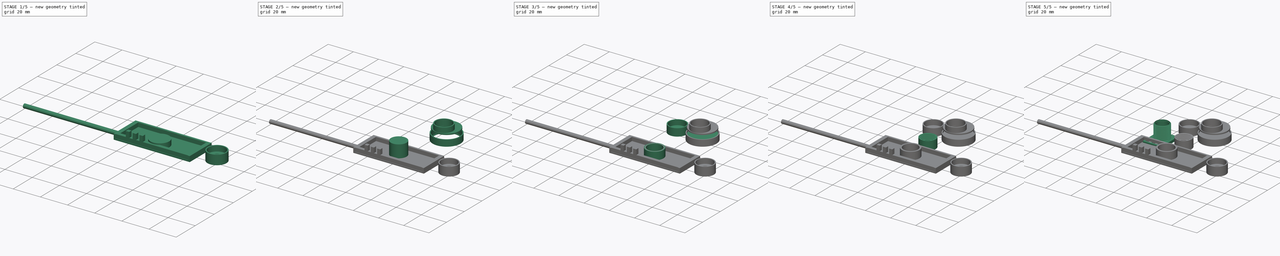
[diagram: build sequence overview — one tinted view per stage of 5, left to right]
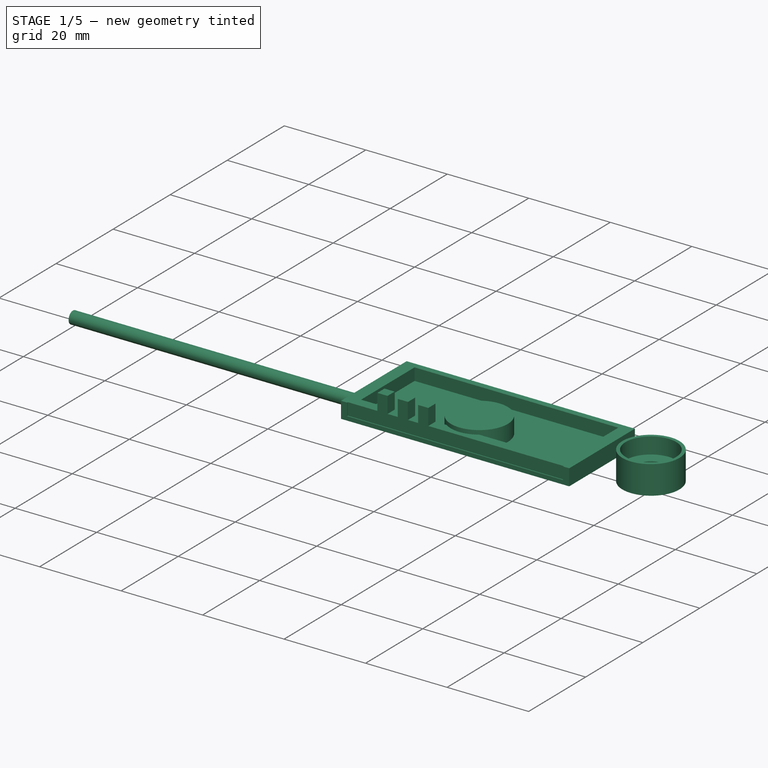
[diagram: stage 1 of 5 — iso view after this stage's code; geometry added in this stage tinted green]
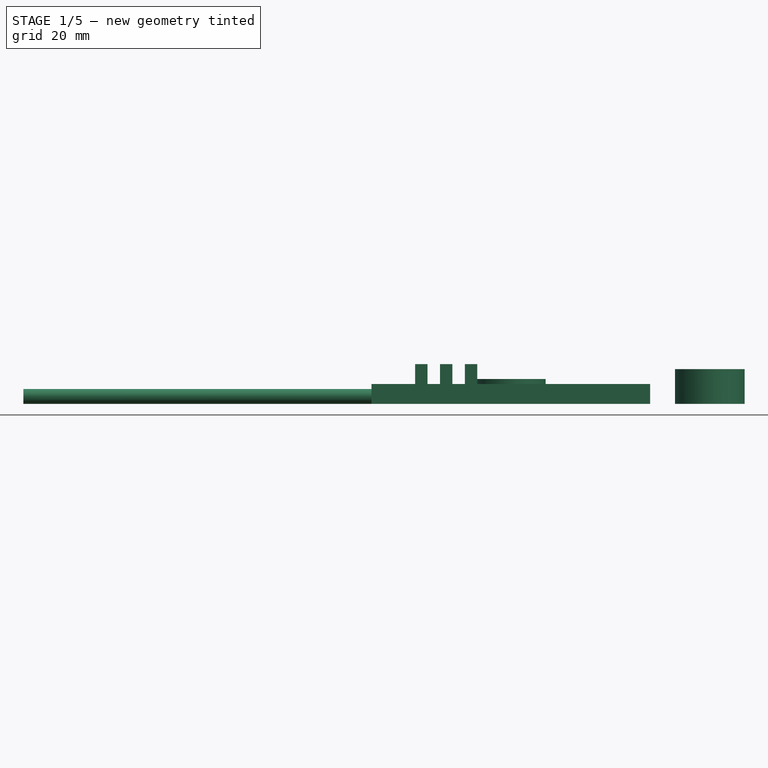
[diagram: stage 1 of 5 — front view after this stage's code; geometry added in this stage tinted green]
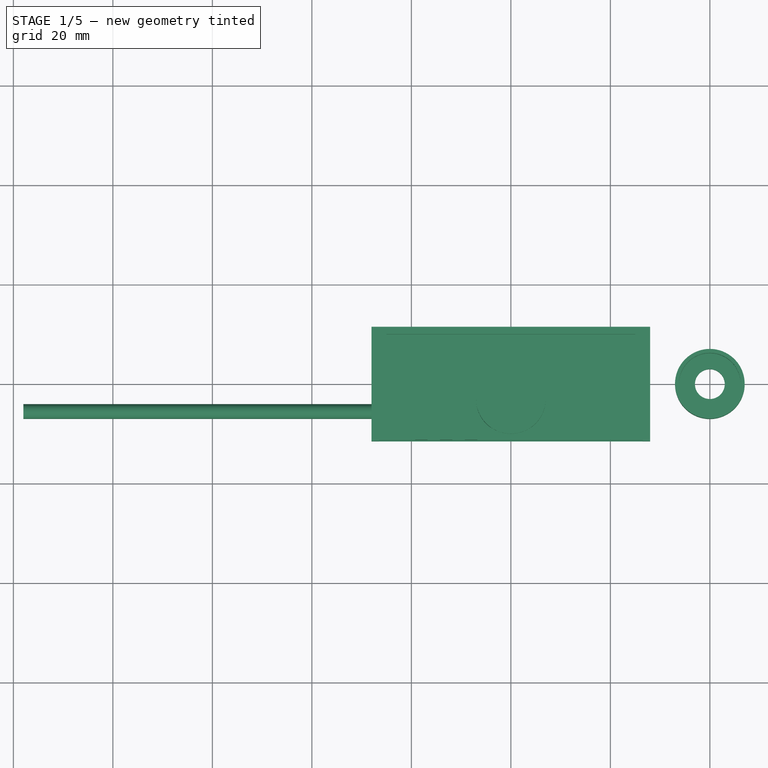
[diagram: stage 1 of 5 — top view after this stage's code; geometry added in this stage tinted green]
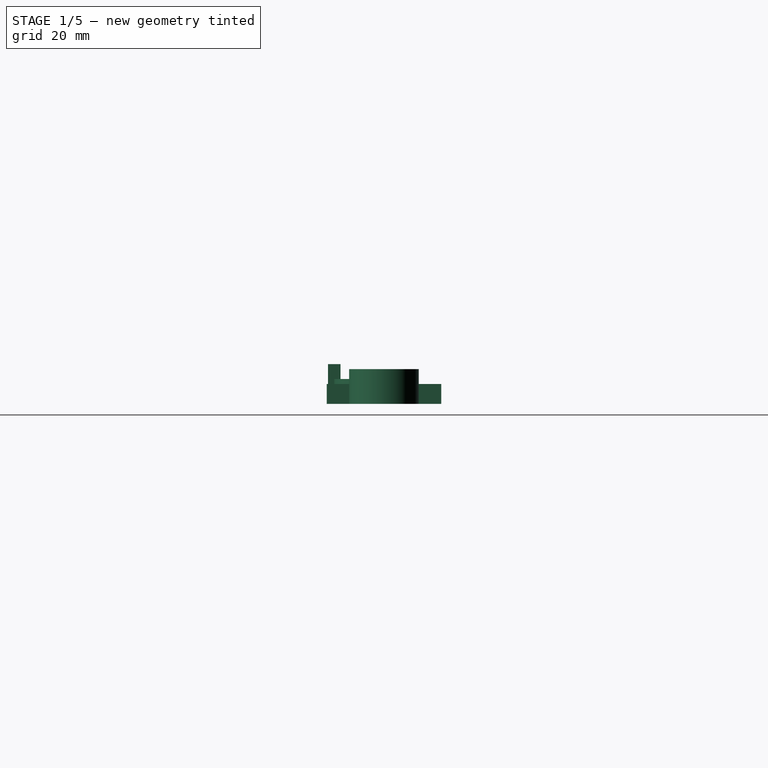
[diagram: stage 1 of 5 — right view after this stage's code; geometry added in this stage tinted green]
FCSTD DOCUMENT  (FreeCAD 0.20R29177 (Git))
Label: receiver-pd-lens03
License: All rights reserved
LicenseURL: http://en.wikipedia.org/wiki/All_rights_reserved
objects: Part::Cylinder×19, Sketcher::SketchObject×17, Part::Cut×12, PartDesign::Pad×10, PartDesign::Pocket×7, PartDesign::Body×5, Part::FeaturePython×3, Part::Fuse×2
note: 92 computed .brp shape members not serialized (recipe doc carries the construction recipe); baked Part::Feature solids carry a one-line shape summary decoded from their .brp

FEATURE [Part::Cylinder] Cylinder016  label="RedTmp06"
  Angle = 360
  AttacherType = Attacher::AttachEngine3D
  FirstAngle = 0
  Height = 5
  Placement = pos=(0,-3,0) rot=(0,0,1;0rad)
  Radius = 7
  SecondAngle = 0
FEATURE [Sketcher::SketchObject] Sketch010  label="MainRxBody003"
  FullyConstrained = true
  MapMode = 5
  Support = -> [XY_Plane003]
  sketch-geometry (4):
    g0: LineSegment StartX=-26.5 StartY=11.25 StartZ=0 EndX=26.5 EndY=11.25 EndZ=0
    g1: LineSegment StartX=26.5 StartY=11.25 StartZ=0 EndX=26.5 EndY=-11.25 EndZ=0
    g2: LineSegment StartX=26.5 StartY=-11.25 StartZ=0 EndX=-26.5 EndY=-11.25 EndZ=0
    g3: LineSegment StartX=-26.5 StartY=-11.25 StartZ=0 EndX=-26.5 EndY=11.25 EndZ=0
  constraints (11):
    c: Coincident(g0,g1)
    c: Coincident(g1,g2)
    c: Coincident(g2,g3)
    c: Coincident(g3,g0)
    c: Horizontal(g0)
    c: Horizontal(g2)
    c: Vertical(g1)
    c: Vertical(g3)
    c: Symmetric(g0,g1,g-1)
    c: DistanceX(g0,g0) = 53
    c: DistanceY(g3,g3) = 22.5
FEATURE [PartDesign::Pad] Pad006  label="MainRxBody002"
  Direction = (0,0,1)
  Length = 4
  Length2 = 10
  Profile = -> Sketch010
  ReferenceAxis = -> Sketch010 [N_Axis]
  Type = 0
FEATURE [Sketcher::SketchObject] Sketch011  label="MainRxCktHole003"
  FullyConstrained = true
  MapMode = 5
  Placement = pos=(0,0,4) rot=(0,0,1;0rad)
  Support = -> [Pad006]
  expr: Constraints[10] = 50mm / 2
  sketch-geometry (4):
    g0: LineSegment StartX=-25 StartY=11.25 StartZ=0 EndX=25 EndY=11.25 EndZ=0
    g1: LineSegment StartX=25 StartY=11.25 StartZ=0 EndX=25 EndY=-8.75 EndZ=0
    g2: LineSegment StartX=25 StartY=-8.75 StartZ=0 EndX=-25 EndY=-8.75 EndZ=0
    g3: LineSegment StartX=-25 StartY=-8.75 StartZ=0 EndX=-25 EndY=11.25 EndZ=0
  constraints (12):
    c: Coincident(g0,g1)
    c: Coincident(g1,g2)
    c: Coincident(g2,g3)
    c: Coincident(g3,g0)
    c: Horizontal(g0)
    c: Horizontal(g2)
    c: Vertical(g1)
    c: Vertical(g3)
    c: DistanceX(g2,g2) = 50
    c: DistanceY(g3,g3) = 20
    c: DistanceX(g0,g-1) = 25
    c: DistanceY(g1,g-1) = 8.75
FEATURE [PartDesign::Pocket] Pocket004  label="MainRxCktHole002"
  BaseFeature = -> Pad006
  Direction = (0,0,-1)
  Length = 3.5
  Length2 = 5
  Profile = -> Sketch011
  ReferenceAxis = -> Sketch011 [N_Axis]
  Type = 0
FEATURE [Sketcher::SketchObject] Sketch012  label="Poles003"
  ExternalGeometry = -> [Pocket004]
  FullyConstrained = true
  MapMode = 5
  Placement = pos=(0,0,4) rot=(0,0,1;0rad)
  Support = -> [Pocket004]
  expr: Constraints[33] = 12mm - 2.5mm / 2
  sketch-geometry (12):
    g0: LineSegment StartX=-19.25 StartY=-8.75 StartZ=0 EndX=-16.75 EndY=-8.75 EndZ=0
    g1: LineSegment StartX=-16.75 StartY=-8.75 StartZ=0 EndX=-16.75 EndY=-11.25 EndZ=0
    g2: LineSegment StartX=-16.75 StartY=-11.25 StartZ=0 EndX=-19.25 EndY=-11.25 EndZ=0
    g3: LineSegment StartX=-19.25 StartY=-11.25 StartZ=0 EndX=-19.25 EndY=-8.75 EndZ=0
    g4: LineSegment StartX=-14.25 StartY=-8.75 StartZ=0 EndX=-11.75 EndY=-8.75 EndZ=0
    g5: LineSegment StartX=-11.75 StartY=-8.75 StartZ=0 EndX=-11.75 EndY=-11.25 EndZ=0
    g6: LineSegment StartX=-11.75 StartY=-11.25 StartZ=0 EndX=-14.25 EndY=-11.25 EndZ=0
    g7: LineSegment StartX=-14.25 StartY=-11.25 StartZ=0 EndX=-14.25 EndY=-8.75 EndZ=0
    g8: LineSegment StartX=-9.25 StartY=-8.75 StartZ=0 EndX=-6.75 EndY=-8.75 EndZ=0
    g9: LineSegment StartX=-6.75 StartY=-8.75 StartZ=0 EndX=-6.75 EndY=-11.25 EndZ=0
    g10: LineSegment StartX=-6.75 StartY=-11.25 StartZ=0 EndX=-9.25 EndY=-11.25 EndZ=0
    g11: LineSegment StartX=-9.25 StartY=-11.25 StartZ=0 EndX=-9.25 EndY=-8.75 EndZ=0
  constraints (36):
    c: Coincident(g0,g1)
    c: Coincident(g1,g2)
    c: Coincident(g2,g3)
    c: Coincident(g3,g0)
    c: Horizontal(g0)
    c: Horizontal(g2)
    c: Vertical(g1)
    c: Vertical(g3)
    c: PointOnObject(g0,g-3)
    c: Coincident(g4,g5)
    c: Coincident(g5,g6)
    c: Coincident(g6,g7)
    c: Coincident(g7,g4)
    c: Horizontal(g4)
    c: Horizontal(g6)
    c: Vertical(g5)
    c: Vertical(g7)
    c: PointOnObject(g4,g-3)
    c: Coincident(g8,g9)
    c: Coincident(g9,g10)
    c: Coincident(g10,g11)
    c: Coincident(g11,g8)
    c: Horizontal(g8)
    c: Horizontal(g10)
    c: Vertical(g9)
    c: Vertical(g11)
    c: PointOnObject(g8,g-3)
    c: Equal(g3,g0)
    c: Equal(g0,g7)
    c: Equal(g7,g4)
    c: Equal(g4,g11)
    c: Equal(g11,g8)
    c: DistanceY(g3,g3) = 2.5
    c: DistanceX(g-3,g4) = 10.75
    c: DistanceX(g0,g4) = 5
    c: DistanceX(g4,g8) = 5
FEATURE [PartDesign::Pad] Pad007  label="Poles002"
  BaseFeature = -> Pocket004
  Direction = (0,0,1)
  Length = 4
  Length2 = 10
  Profile = -> Sketch012
  ReferenceAxis = -> Sketch012 [N_Axis]
  Type = 0
FEATURE [Sketcher::SketchObject] Sketch013  label="CapRxMain0003"
  FullyConstrained = true
  MapMode = 5
  Support = -> [XY_Plane004]
  sketch-geometry (4):
    g0: LineSegment StartX=-28 StartY=11.5 StartZ=0 EndX=28 EndY=11.5 EndZ=0
    g1: LineSegment StartX=28 StartY=11.5 StartZ=0 EndX=28 EndY=-11.5 EndZ=0
    g2: LineSegment StartX=28 StartY=-11.5 StartZ=0 EndX=-28 EndY=-11.5 EndZ=0
    g3: LineSegment StartX=-28 StartY=-11.5 StartZ=0 EndX=-28 EndY=11.5 EndZ=0
  constraints (11):
    c: Coincident(g0,g1)
    c: Coincident(g1,g2)
    c: Coincident(g2,g3)
    c: Coincident(g3,g0)
    c: Horizontal(g0)
    c: Horizontal(g2)
    c: Vertical(g1)
    c: Vertical(g3)
    c: DistanceX(g0,g0) = 56
    c: Symmetric(g0,g1,g-1)
    c: DistanceY(g1,g1) = 23
FEATURE [PartDesign::Pad] Pad008  label="CapRxMain0002"
  Direction = (0,0,1)
  Length = 4
  Length2 = 10
  Profile = -> Sketch013
  ReferenceAxis = -> Sketch013 [N_Axis]
  Type = 0
FEATURE [Sketcher::SketchObject] Sketch014  label="CapRxHole003"
  FullyConstrained = false
  MapMode = 5
  Placement = pos=(0,0,4) rot=(0,0,1;0rad)
  Support = -> [Pad008]
  sketch-geometry (4):
    g0: LineSegment StartX=-26.5 StartY=10 StartZ=0 EndX=26.5 EndY=10 EndZ=0
    g1: LineSegment StartX=26.5 StartY=10 StartZ=0 EndX=26.5 EndY=-15.3796 EndZ=0
    g2: LineSegment StartX=26.5 StartY=-15.3796 StartZ=0 EndX=-26.5 EndY=-15.3796 EndZ=0
    g3: LineSegment StartX=-26.5 StartY=-15.3796 StartZ=0 EndX=-26.5 EndY=10 EndZ=0
  constraints (11):
    c: Coincident(g0,g1)
    c: Coincident(g1,g2)
    c: Coincident(g2,g3)
    c: Coincident(g3,g0)
    c: Horizontal(g0)
    c: Horizontal(g2)
    c: Vertical(g1)
    c: Vertical(g3)
    c: DistanceX(g0,g0) = 53
    c: DistanceX(g-1,g0) = 26.5
    c: DistanceY(g-1,g0) = 10
FEATURE [PartDesign::Pocket] Pocket005  label="CapRxHole002"
  BaseFeature = -> Pad008
  Direction = (0,0,-1)
  Length = 3
  Length2 = 5
  Profile = -> Sketch014
  ReferenceAxis = -> Sketch014 [N_Axis]
  Type = 0
FEATURE [Sketcher::SketchObject] Sketch015  label="Pole003"
  ExternalGeometry = -> [Pocket005]
  FullyConstrained = true
  MapMode = 5
  Placement = pos=(-28,0,0) rot=(0.57735,-0.57735,-0.57735;2.0944rad)
  Support = -> [Pocket005]
  sketch-geometry (1):
    g0: Circle CenterX=5.5 CenterY=1.5 CenterZ=0 NormalX=0 NormalY=0 NormalZ=1 AngleXU=0 Radius=1.5
  constraints (3):
    c: DistanceX(g-3,g0) = 17
    c: Diameter(g0) = 3
    c: DistanceY(g-3,g0) = 1.5
FEATURE [PartDesign::Pad] Pad009  label="Pole002"
  BaseFeature = -> Pocket005
  Direction = (-1,0,0)
  Length = 70
  Length2 = 10
  Profile = -> Sketch015
  ReferenceAxis = -> Sketch015 [N_Axis]
  Type = 0
FEATURE [PartDesign::Body] Body004  label="CapRx001"
  Group = -> [Sketch013,Pad008,Sketch014,Pocket005,Sketch015,Pad009]
  Origin = -> Origin004
  Placement = pos=(0,-36.25,0) rot=(0,0,1;0rad)
  Tip = -> Pad009
FEATURE [Sketcher::SketchObject] Sketch016
  ExternalGeometry = -> [Pad007]
  FullyConstrained = true
  MapMode = 5
  Placement = pos=(0,0,0.5) rot=(0,0,1;0rad)
  Support = -> [Pad007]
  sketch-geometry (4):
    g0: LineSegment StartX=-24 StartY=11.25 StartZ=0 EndX=-21 EndY=11.25 EndZ=0
    g1: LineSegment StartX=-21 StartY=11.25 StartZ=0 EndX=-21 EndY=1.25 EndZ=0
    g2: LineSegment StartX=-21 StartY=1.25 StartZ=0 EndX=-24 EndY=1.25 EndZ=0
    g3: LineSegment StartX=-24 StartY=1.25 StartZ=0 EndX=-24 EndY=11.25 EndZ=0
  constraints (13):
    c: Coincident(g0,g1)
    c: Coincident(g1,g2)
    c: Coincident(g2,g3)
    c: Coincident(g3,g0)
    c: Horizontal(g0)
    c: Horizontal(g2)
    c: Vertical(g1)
    c: Vertical(g3)
    c: DistanceX(g-3,g0) = 1
    c: DistanceX(g0,g0) = 3
    c: DistanceY(g0,g-3) = 0
    c: DistanceY(g-3,g-3) = 20
    c: DistanceY(g1,g1) = 10
FEATURE [PartDesign::Pocket] Pocket006
  BaseFeature = -> Pad007
  Direction = (0,0,-1)
  Length = 5
  Length2 = 5
  Profile = -> Sketch016
  ReferenceAxis = -> Sketch016 [N_Axis]
  Type = 1
FEATURE [PartDesign::Body] Body003  label="MainRx001"
  Group = -> [Sketch010,Pad006,Sketch011,Pocket004,Sketch012,Pad007,Sketch016,Pocket006]
  Origin = -> Origin003
  Placement = pos=(0,-40,0) rot=(0,0,1;0rad)
  Tip = -> Pocket006
FEATURE [Part::FeaturePython] Tube  # WARN: FeaturePython — macro-defined, semantics opaque (R4)
  AttacherType = Attacher::AttachEngine3D
  Height = 7
  InnerRadius = 3
  OuterRadius = 7
  Placement = pos=(40,0,0) rot=(0,0,1;0rad)
FEATURE [Part::Cylinder] Cylinder018  label="Cylinder"
  Angle = 360
  AttacherType = Attacher::AttachEngine3D
  FirstAngle = 0
  Height = 5
  Placement = pos=(40,0,3) rot=(0,0,1;0rad)
  Radius = 6.2
  SecondAngle = 0
FEATURE [Part::Cut] Cut011  label="CapTmp"
  Base = -> Tube
  Tool = -> Cylinder018
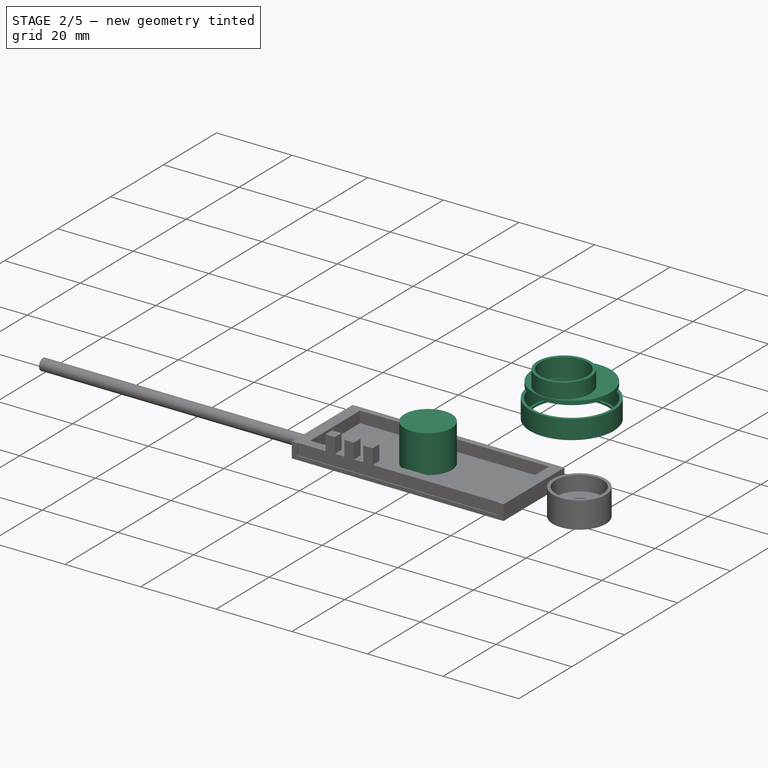
[diagram: stage 2 of 5 — iso view after this stage's code; geometry added in this stage tinted green]
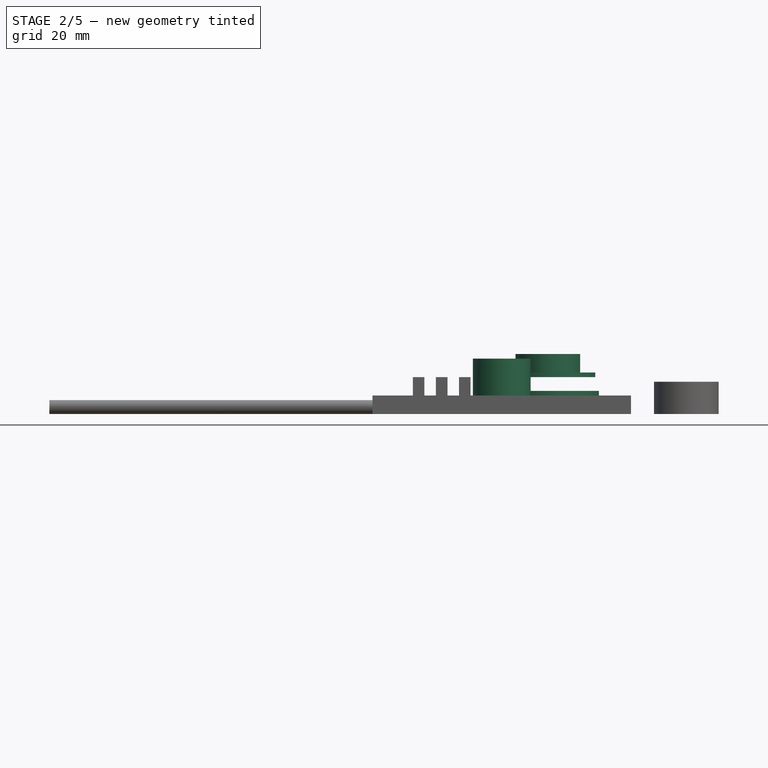
[diagram: stage 2 of 5 — front view after this stage's code; geometry added in this stage tinted green]
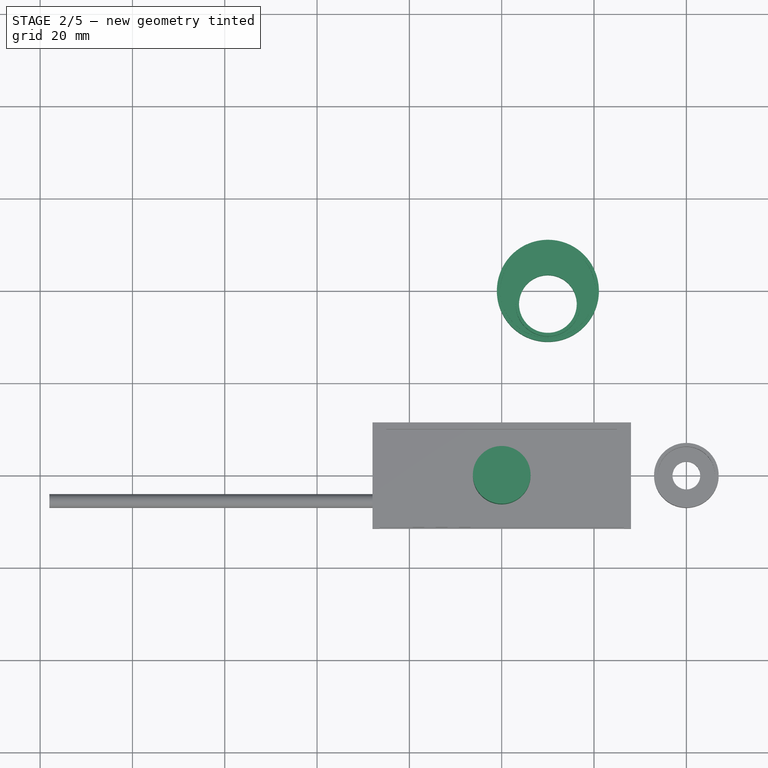
[diagram: stage 2 of 5 — top view after this stage's code; geometry added in this stage tinted green]
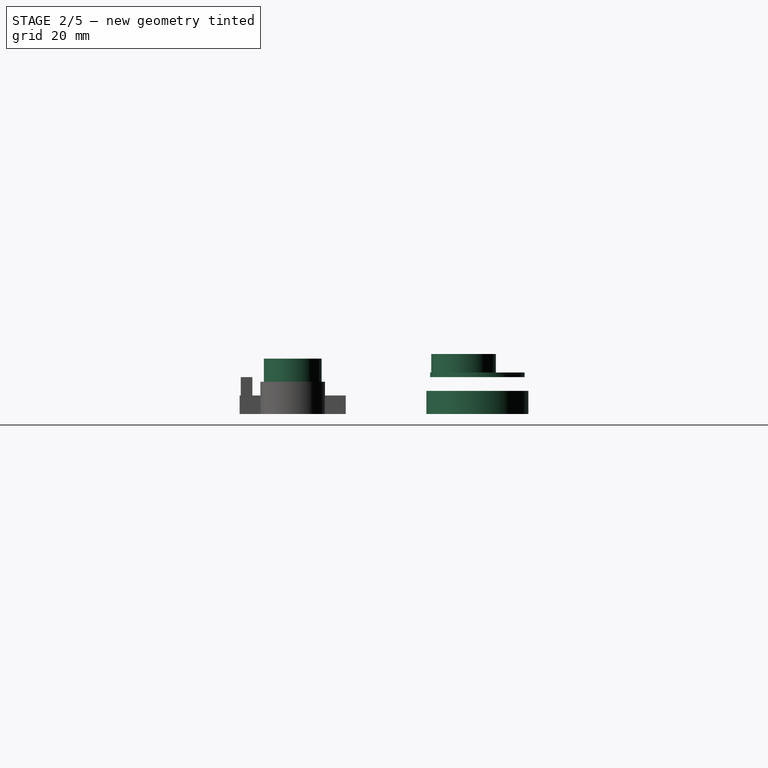
[diagram: stage 2 of 5 — right view after this stage's code; geometry added in this stage tinted green]
FEATURE [Part::Cylinder] Cylinder011  label="BlueTmp06"
  Angle = 360
  AttacherType = Attacher::AttachEngine3D
  FirstAngle = 0
  Height = 10
  Placement = pos=(0,0,2) rot=(0,0,1;0rad)
  Radius = 6.25
  SecondAngle = 0
FEATURE [Part::Cylinder] Cylinder012  label="RedTmp01"
  Angle = 360
  AttacherType = Attacher::AttachEngine3D
  FirstAngle = 0
  Height = 5
  Radius = 11.05
  SecondAngle = 0
FEATURE [Part::Cylinder] Cylinder013  label="RedTmp02"
  Angle = 360
  AttacherType = Attacher::AttachEngine3D
  FirstAngle = 0
  Height = 10
  Placement = pos=(0,0,0.5) rot=(0,0,1;0rad)
  Radius = 10.3
  SecondAngle = 0
FEATURE [Part::Cut] Cut008  label="RedTmp03"
  Base = -> Cylinder012
  Tool = -> Cylinder013
FEATURE [Part::Cylinder] Cylinder014  label="RedTmp04"
  Angle = 360
  AttacherType = Attacher::AttachEngine3D
  FirstAngle = 0
  Height = 10
  Radius = 9.8
  SecondAngle = 0
FEATURE [Part::Cut] Cut009  label="RedBase"
  Base = -> Cut008
  Placement = pos=(10,40,0) rot=(0,0,1;0rad)
  Tool = -> Cylinder014
FEATURE [Part::Cylinder] Cylinder015  label="RedTmp05"
  Angle = 360
  AttacherType = Attacher::AttachEngine3D
  FirstAngle = 0
  Height = 1
  Radius = 10.25
  SecondAngle = 0
FEATURE [Part::Cylinder] Cylinder017  label="RedTmp07"
  Angle = 360
  AttacherType = Attacher::AttachEngine3D
  FirstAngle = 0
  Height = 10
  Placement = pos=(0,-3,0) rot=(0,0,1;0rad)
  Radius = 6.25
  SecondAngle = 0
FEATURE [Part::Fuse] Fusion001  label="RedTmp08"
  Base = -> Cylinder015
  Tool = -> Cylinder016
FEATURE [Part::Cut] Cut010  label="RedTop"
  Base = -> Fusion001
  Placement = pos=(10,40,8) rot=(0,0,1;0rad)
  Tool = -> Cylinder017
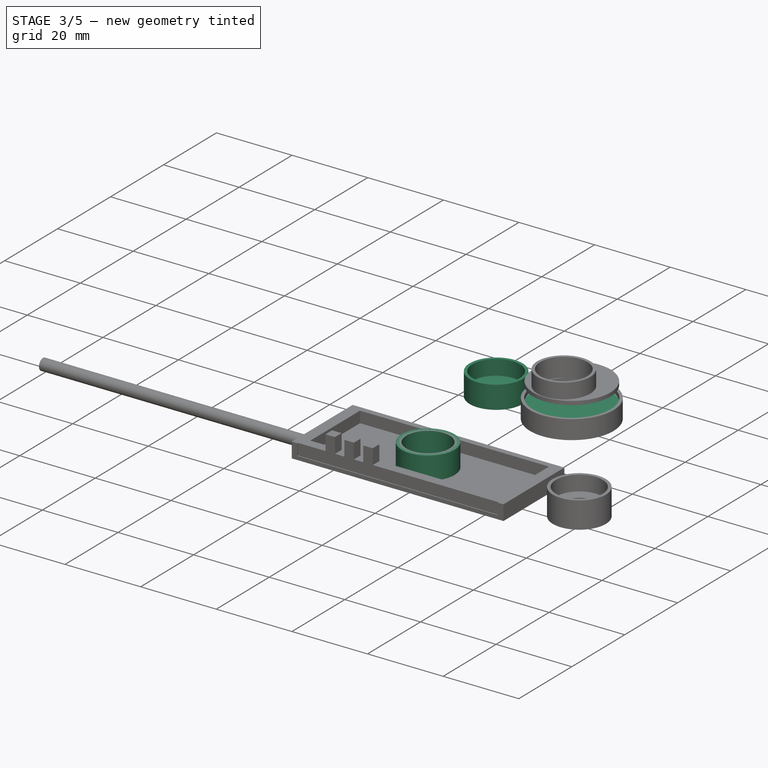
[diagram: stage 3 of 5 — iso view after this stage's code; geometry added in this stage tinted green]
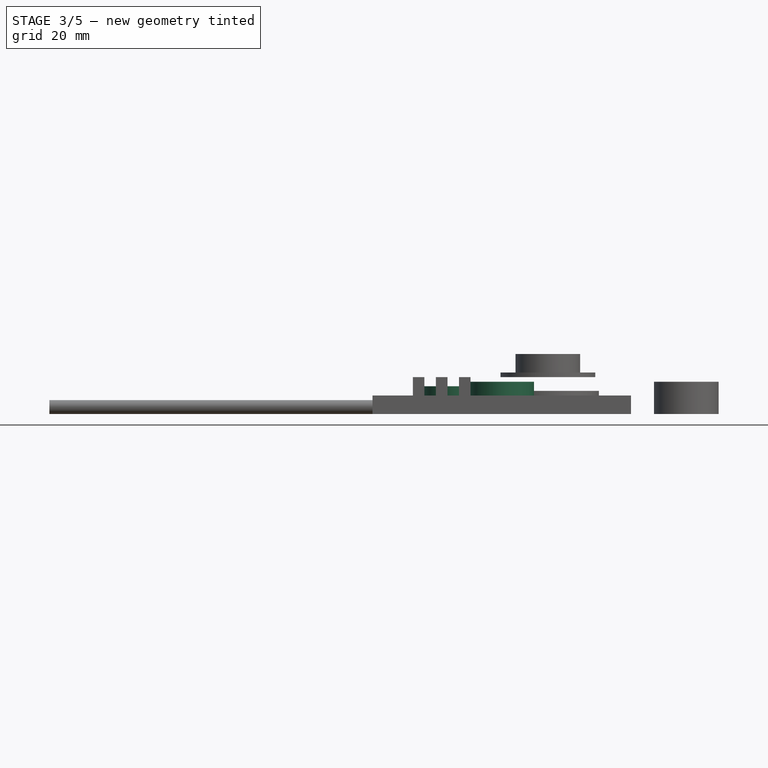
[diagram: stage 3 of 5 — front view after this stage's code; geometry added in this stage tinted green]
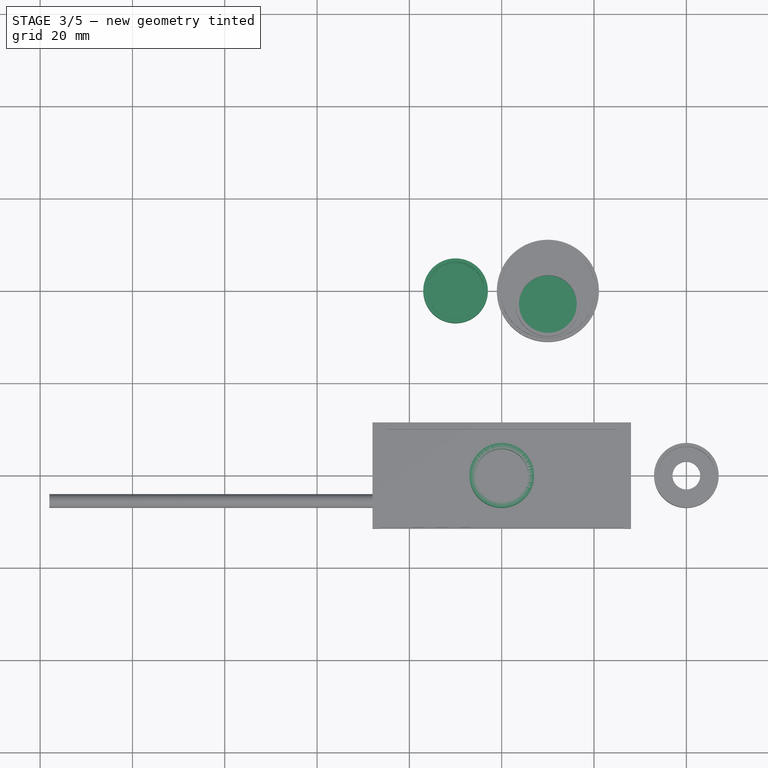
[diagram: stage 3 of 5 — top view after this stage's code; geometry added in this stage tinted green]
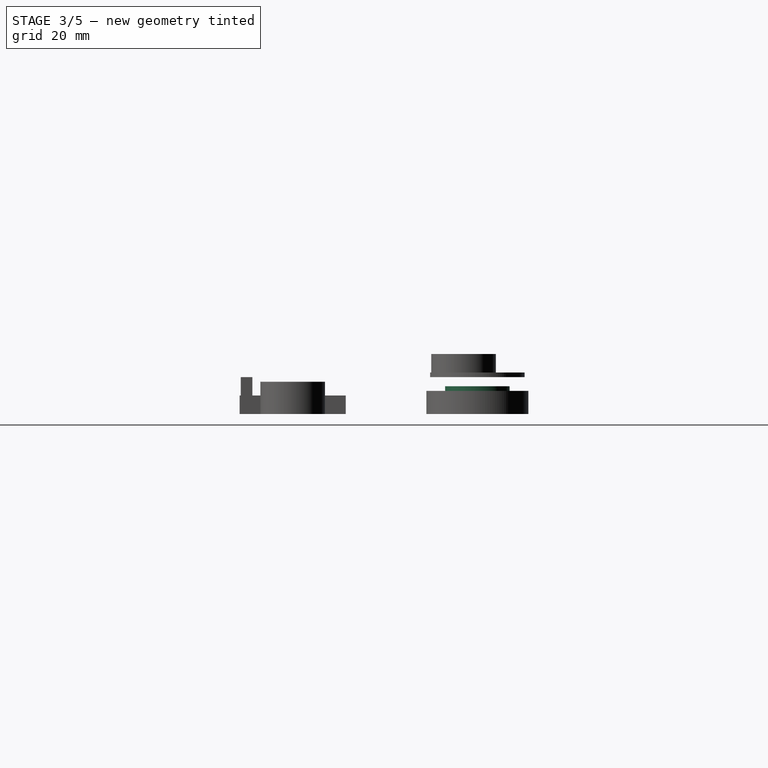
[diagram: stage 3 of 5 — right view after this stage's code; geometry added in this stage tinted green]
FEATURE [PartDesign::Body] Body002  label="CapRx"
  Group = -> [Sketch007,Pad004,Sketch008,Pocket003,Sketch009,Pad005]
  Origin = -> Origin002
  Placement = pos=(0,-6.75,0) rot=(0,0,1;0rad)
  Tip = -> Pad005
FEATURE [Part::Cylinder] Cylinder003  label="HolderLens"
  Angle = 360
  AttacherType = Attacher::AttachEngine3D
  FirstAngle = 0
  Height = 10
  Placement = pos=(0,0,1) rot=(0,0,1;0rad)
  Radius = 5.75
  SecondAngle = 0
  expr: Radius = 11.5 / 2
FEATURE [Part::Cylinder] Cylinder004  label="HolderTmp01"
  Angle = 360
  AttacherType = Attacher::AttachEngine3D
  FirstAngle = 0
  Height = 7
  Radius = 7
  SecondAngle = 0
FEATURE [Part::Cut] Cut003  label="HolderTmp02"
  Base = -> Cylinder004
  Tool = -> Cylinder003
FEATURE [Part::Cylinder] Cylinder006  label="BlueGlass"
  Angle = 360
  AttacherType = Attacher::AttachEngine3D
  FirstAngle = 0
  Height = 1
  Placement = pos=(-10,40,1) rot=(0,0,1;0rad)
  Radius = 6
  SecondAngle = 0
FEATURE [Part::Cylinder] Cylinder007  label="RedGlass"
  Angle = 360
  AttacherType = Attacher::AttachEngine3D
  FirstAngle = 0
  Height = 3
  Placement = pos=(10,40,1) rot=(0,0,1;0rad)
  Radius = 10.25
  SecondAngle = 0
FEATURE [Part::Cylinder] Cylinder008  label="BlueTmp01"
  Angle = 360
  AttacherType = Attacher::AttachEngine3D
  FirstAngle = 0
  Height = 6
  Radius = 7
  SecondAngle = 0
FEATURE [Part::Cylinder] Cylinder009  label="BlueTmp02"
  Angle = 360
  AttacherType = Attacher::AttachEngine3D
  FirstAngle = 0
  Height = 10
  Radius = 5.75
  SecondAngle = 0
FEATURE [Part::Cut] Cut005  label="BlueTmp03"
  Base = -> Cylinder008
  Tool = -> Cylinder009
FEATURE [Part::Cylinder] Cylinder010  label="BlueTmp04"
  Angle = 360
  AttacherType = Attacher::AttachEngine3D
  FirstAngle = 0
  Height = 10
  Placement = pos=(0,0,0.5) rot=(0,0,1;0rad)
  Radius = 6.05
  SecondAngle = 0
FEATURE [Part::Cut] Cut006  label="BlueTmp05"
  Base = -> Cut005
  Tool = -> Cylinder010
FEATURE [Part::Cut] Cut007  label="BlueHolder"
  Base = -> Cut006
  Placement = pos=(-10,40,0) rot=(0,0,1;0rad)
  Tool = -> Cylinder011
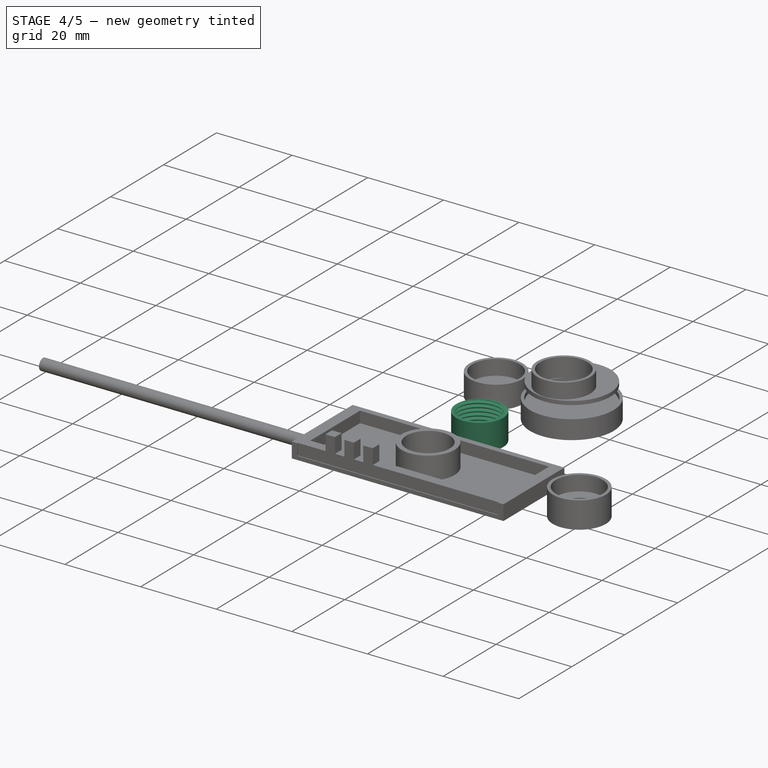
[diagram: stage 4 of 5 — iso view after this stage's code; geometry added in this stage tinted green]
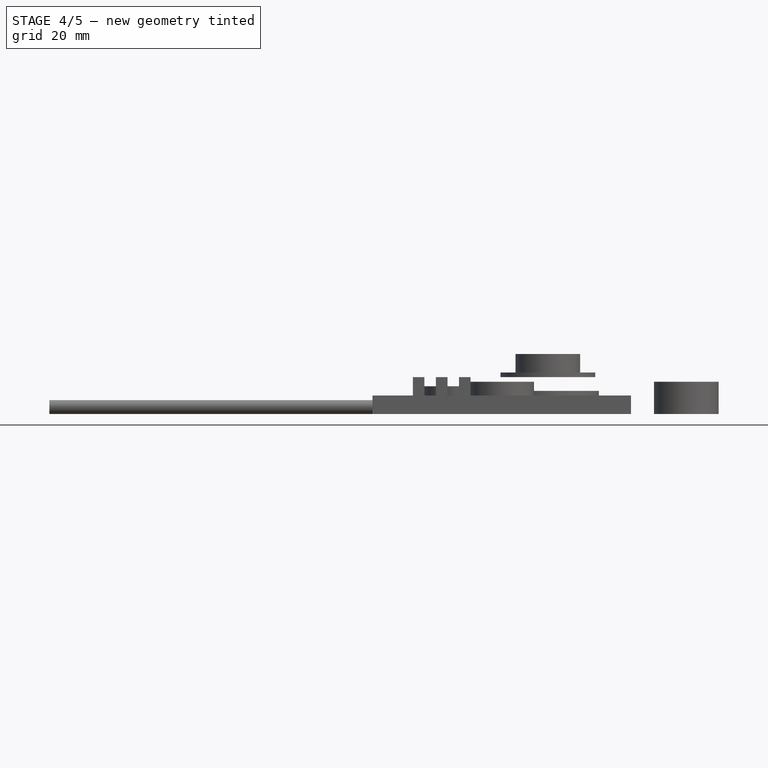
[diagram: stage 4 of 5 — front view after this stage's code; geometry added in this stage tinted green]
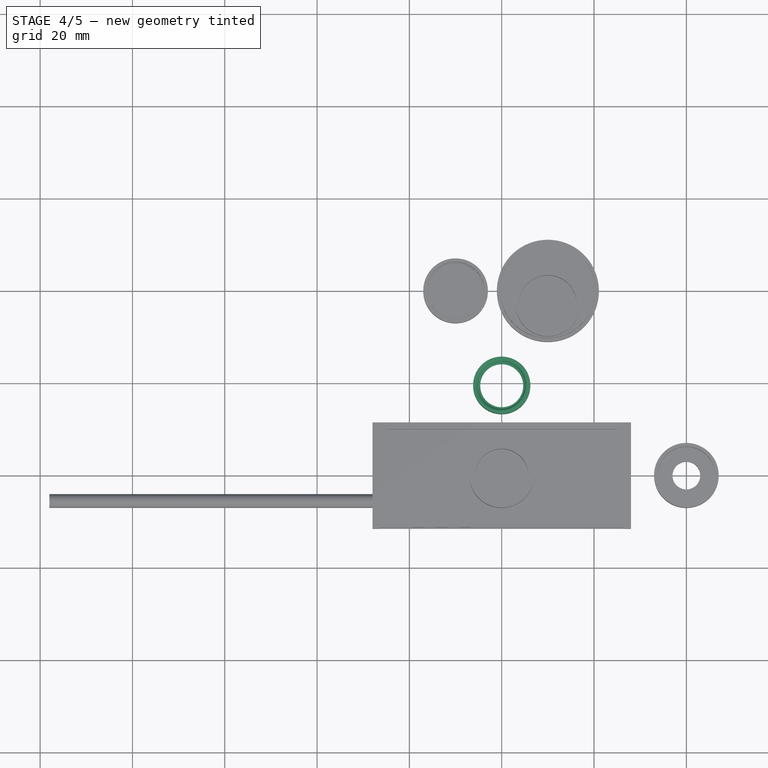
[diagram: stage 4 of 5 — top view after this stage's code; geometry added in this stage tinted green]
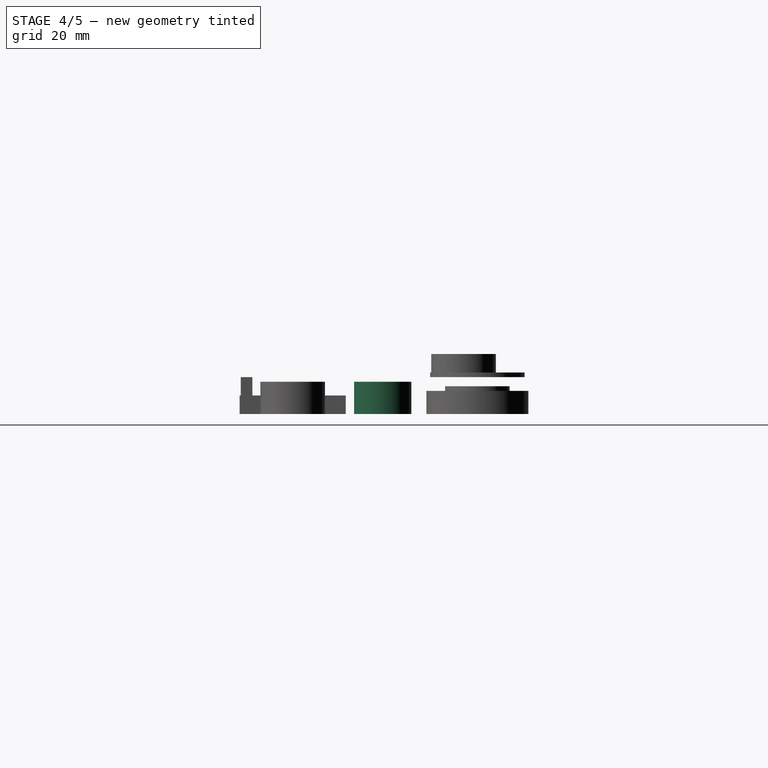
[diagram: stage 4 of 5 — right view after this stage's code; geometry added in this stage tinted green]
FEATURE [Part::Cylinder] Cylinder001  label="TopTmp1"
  Angle = 360
  AttacherType = Attacher::AttachEngine3D
  FirstAngle = 0
  Height = 7
  Radius = 6.2
  SecondAngle = 0
FEATURE [Part::Cylinder] Cylinder002  label="TopTmp2"
  Angle = 360
  AttacherType = Attacher::AttachEngine3D
  FirstAngle = 0
  Height = 7
  Radius = 4.65
  SecondAngle = 0
FEATURE [Part::Cut] Cut001  label="TopTmp3"
  Base = -> Cylinder001
  Tool = -> Cylinder002
FEATURE [Part::FeaturePython] ThreadedRod001  label="11.8 mmx10.0-ThreadedRod"  # Fasteners workbench fastener (typed FeaturePython)
  Placement = pos=(0,0,10.5) rot=(0,0,1;0rad)
  diameter = 27
  diameterCustom = 11.8
  invert = false
  leftHanded = false
  length = 10
  matchOuter = false
  offset = 0
  pitchCustom = 1
  thread = true
FEATURE [Part::Cut] Cut002  label="Top"
  Base = -> Cut001
  Placement = pos=(0,19.5,0) rot=(0,0,1;0rad)
  Tool = -> ThreadedRod001
FEATURE [Sketcher::SketchObject] Sketch007  label="CapRxMain0001"
  FullyConstrained = true
  MapMode = 5
  Support = -> [XY_Plane002]
  sketch-geometry (4):
    g0: LineSegment StartX=-28 StartY=11.5 StartZ=0 EndX=28 EndY=11.5 EndZ=0
    g1: LineSegment StartX=28 StartY=11.5 StartZ=0 EndX=28 EndY=-11.5 EndZ=0
    g2: LineSegment StartX=28 StartY=-11.5 StartZ=0 EndX=-28 EndY=-11.5 EndZ=0
    g3: LineSegment StartX=-28 StartY=-11.5 StartZ=0 EndX=-28 EndY=11.5 EndZ=0
  constraints (11):
    c: Coincident(g0,g1)
    c: Coincident(g1,g2)
    c: Coincident(g2,g3)
    c: Coincident(g3,g0)
    c: Horizontal(g0)
    c: Horizontal(g2)
    c: Vertical(g1)
    c: Vertical(g3)
    c: DistanceX(g0,g0) = 56
    c: Symmetric(g0,g1,g-1)
    c: DistanceY(g1,g1) = 23
FEATURE [PartDesign::Pad] Pad004  label="CapRxMain"
  Direction = (0,0,1)
  Length = 4
  Length2 = 10
  Profile = -> Sketch007
  ReferenceAxis = -> Sketch007 [N_Axis]
  Type = 0
FEATURE [Sketcher::SketchObject] Sketch008  label="CapRxHole001"
  FullyConstrained = false
  MapMode = 5
  Placement = pos=(0,0,4) rot=(0,0,1;0rad)
  Support = -> [Pad004]
  sketch-geometry (4):
    g0: LineSegment StartX=-26.5 StartY=10 StartZ=0 EndX=26.5 EndY=10 EndZ=0
    g1: LineSegment StartX=26.5 StartY=10 StartZ=0 EndX=26.5 EndY=-15.3796 EndZ=0
    g2: LineSegment StartX=26.5 StartY=-15.3796 StartZ=0 EndX=-26.5 EndY=-15.3796 EndZ=0
    g3: LineSegment StartX=-26.5 StartY=-15.3796 StartZ=0 EndX=-26.5 EndY=10 EndZ=0
  constraints (11):
    c: Coincident(g0,g1)
    c: Coincident(g1,g2)
    c: Coincident(g2,g3)
    c: Coincident(g3,g0)
    c: Horizontal(g0)
    c: Horizontal(g2)
    c: Vertical(g1)
    c: Vertical(g3)
    c: DistanceX(g0,g0) = 53
    c: DistanceX(g-1,g0) = 26.5
    c: DistanceY(g-1,g0) = 10
FEATURE [PartDesign::Pocket] Pocket003  label="CapRxHole"
  BaseFeature = -> Pad004
  Direction = (0,0,-1)
  Length = 3
  Length2 = 5
  Profile = -> Sketch008
  ReferenceAxis = -> Sketch008 [N_Axis]
  Type = 0
FEATURE [Sketcher::SketchObject] Sketch009  label="Pole001"
  ExternalGeometry = -> [Pocket003]
  FullyConstrained = true
  MapMode = 5
  Placement = pos=(-28,0,0) rot=(0.57735,-0.57735,-0.57735;2.0944rad)
  Support = -> [Pocket003]
  sketch-geometry (1):
    g0: Circle CenterX=5.5 CenterY=1.5 CenterZ=0 NormalX=0 NormalY=0 NormalZ=1 AngleXU=0 Radius=1.5
  constraints (3):
    c: DistanceX(g-3,g0) = 17
    c: Diameter(g0) = 3
    c: DistanceY(g-3,g0) = 1.5
FEATURE [PartDesign::Pad] Pad005  label="Pole"
  BaseFeature = -> Pocket003
  Direction = (-1,0,0)
  Length = 70
  Length2 = 10
  Profile = -> Sketch009
  ReferenceAxis = -> Sketch009 [N_Axis]
  Type = 0
FEATURE [Part::Cylinder] Cylinder005  label="HolderLensSmall"
  Angle = 360
  AttacherType = Attacher::AttachEngine3D
  FirstAngle = 0
  Height = 10
  Radius = 5.25
  SecondAngle = 0
  expr: Radius = 11.5 / 2 - 0.5
FEATURE [Part::Cut] Cut004  label="LensHolder01"
  Base = -> Cut003
  Tool = -> Cylinder005
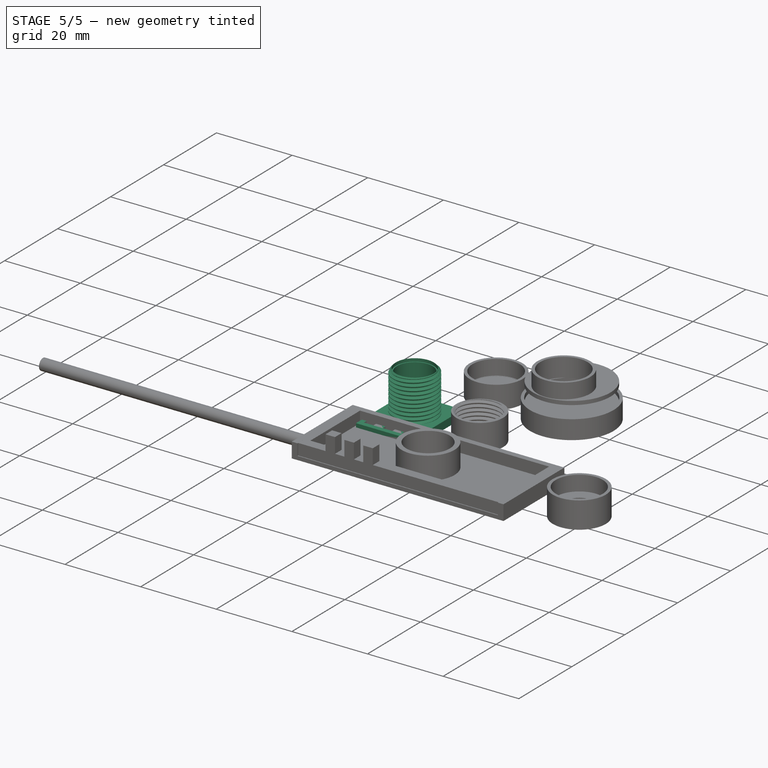
[diagram: stage 5 of 5 — iso view after this stage's code; geometry added in this stage tinted green]
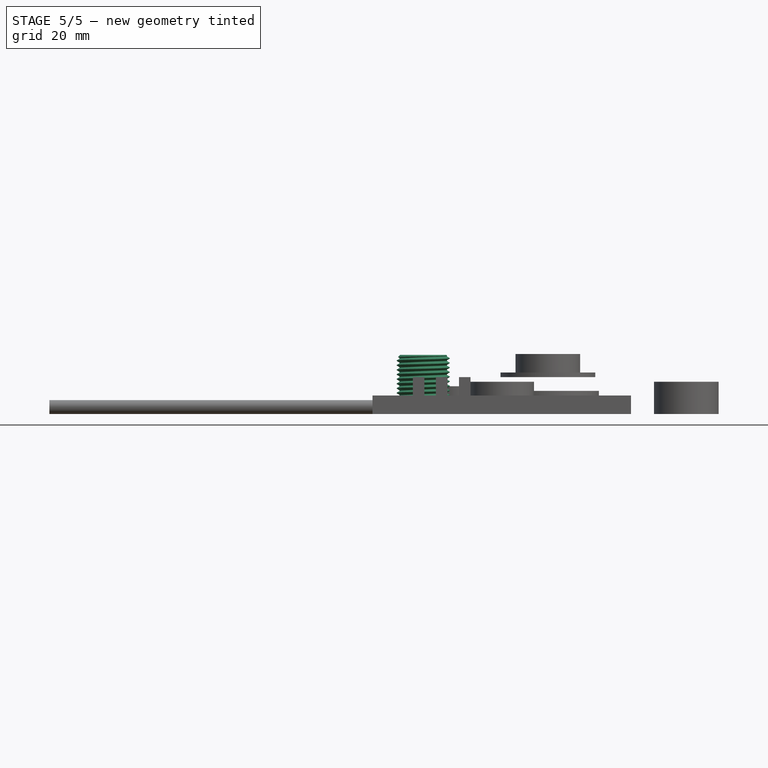
[diagram: stage 5 of 5 — front view after this stage's code; geometry added in this stage tinted green]
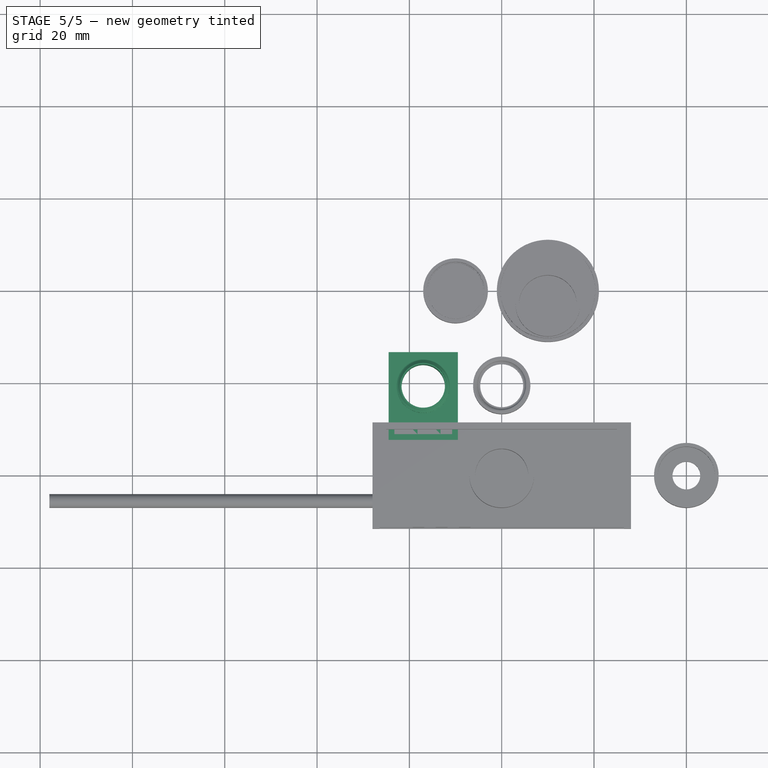
[diagram: stage 5 of 5 — top view after this stage's code; geometry added in this stage tinted green]
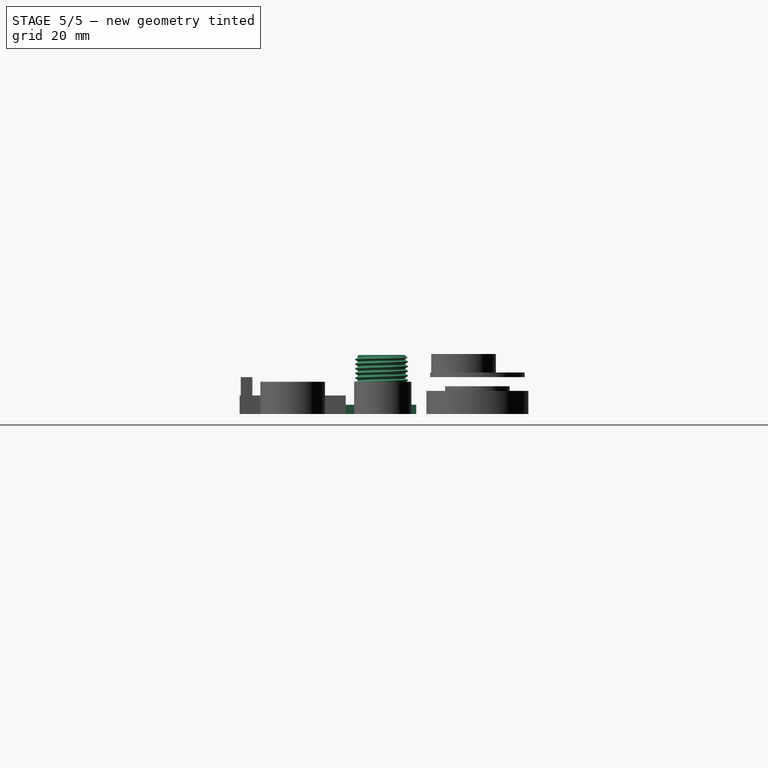
[diagram: stage 5 of 5 — right view after this stage's code; geometry added in this stage tinted green]
FEATURE [Sketcher::SketchObject] Sketch  label="MainRxBody001"
  FullyConstrained = true
  MapMode = 5
  Support = -> [XY_Plane]
  sketch-geometry (4):
    g0: LineSegment StartX=-26.5 StartY=11.25 StartZ=0 EndX=26.5 EndY=11.25 EndZ=0
    g1: LineSegment StartX=26.5 StartY=11.25 StartZ=0 EndX=26.5 EndY=-11.25 EndZ=0
    g2: LineSegment StartX=26.5 StartY=-11.25 StartZ=0 EndX=-26.5 EndY=-11.25 EndZ=0
    g3: LineSegment StartX=-26.5 StartY=-11.25 StartZ=0 EndX=-26.5 EndY=11.25 EndZ=0
  constraints (11):
    c: Coincident(g0,g1)
    c: Coincident(g1,g2)
    c: Coincident(g2,g3)
    c: Coincident(g3,g0)
    c: Horizontal(g0)
    c: Horizontal(g2)
    c: Vertical(g1)
    c: Vertical(g3)
    c: Symmetric(g0,g1,g-1)
    c: DistanceX(g0,g0) = 53
    c: DistanceY(g3,g3) = 22.5
FEATURE [PartDesign::Pad] Pad  label="MainRxBody"
  Direction = (0,0,1)
  Length = 4
  Length2 = 10
  Profile = -> Sketch
  ReferenceAxis = -> Sketch [N_Axis]
  Type = 0
FEATURE [Sketcher::SketchObject] Sketch001  label="MainRxCktHole001"
  FullyConstrained = true
  MapMode = 5
  Placement = pos=(0,0,4) rot=(0,0,1;0rad)
  Support = -> [Pad]
  expr: Constraints[10] = 50mm / 2
  sketch-geometry (4):
    g0: LineSegment StartX=-25 StartY=11.25 StartZ=0 EndX=25 EndY=11.25 EndZ=0
    g1: LineSegment StartX=25 StartY=11.25 StartZ=0 EndX=25 EndY=-8.75 EndZ=0
    g2: LineSegment StartX=25 StartY=-8.75 StartZ=0 EndX=-25 EndY=-8.75 EndZ=0
    g3: LineSegment StartX=-25 StartY=-8.75 StartZ=0 EndX=-25 EndY=11.25 EndZ=0
  constraints (12):
    c: Coincident(g0,g1)
    c: Coincident(g1,g2)
    c: Coincident(g2,g3)
    c: Coincident(g3,g0)
    c: Horizontal(g0)
    c: Horizontal(g2)
    c: Vertical(g1)
    c: Vertical(g3)
    c: DistanceX(g2,g2) = 50
    c: DistanceY(g3,g3) = 20
    c: DistanceX(g0,g-1) = 25
    c: DistanceY(g1,g-1) = 8.75
FEATURE [PartDesign::Pocket] Pocket  label="MainRxCktHole"
  BaseFeature = -> Pad
  Direction = (0,0,-1)
  Length = 3.5
  Length2 = 5
  Profile = -> Sketch001
  ReferenceAxis = -> Sketch001 [N_Axis]
  Type = 0
FEATURE [Sketcher::SketchObject] Sketch002  label="Poles001"
  ExternalGeometry = -> [Pocket]
  FullyConstrained = true
  MapMode = 5
  Placement = pos=(0,0,4) rot=(0,0,1;0rad)
  Support = -> [Pocket]
  expr: Constraints[33] = 12mm - 2.5mm / 2
  sketch-geometry (12):
    g0: LineSegment StartX=-19.25 StartY=-8.75 StartZ=0 EndX=-16.75 EndY=-8.75 EndZ=0
    g1: LineSegment StartX=-16.75 StartY=-8.75 StartZ=0 EndX=-16.75 EndY=-11.25 EndZ=0
    g2: LineSegment StartX=-16.75 StartY=-11.25 StartZ=0 EndX=-19.25 EndY=-11.25 EndZ=0
    g3: LineSegment StartX=-19.25 StartY=-11.25 StartZ=0 EndX=-19.25 EndY=-8.75 EndZ=0
    g4: LineSegment StartX=-14.25 StartY=-8.75 StartZ=0 EndX=-11.75 EndY=-8.75 EndZ=0
    g5: LineSegment StartX=-11.75 StartY=-8.75 StartZ=0 EndX=-11.75 EndY=-11.25 EndZ=0
    g6: LineSegment StartX=-11.75 StartY=-11.25 StartZ=0 EndX=-14.25 EndY=-11.25 EndZ=0
    g7: LineSegment StartX=-14.25 StartY=-11.25 StartZ=0 EndX=-14.25 EndY=-8.75 EndZ=0
    g8: LineSegment StartX=-9.25 StartY=-8.75 StartZ=0 EndX=-6.75 EndY=-8.75 EndZ=0
    g9: LineSegment StartX=-6.75 StartY=-8.75 StartZ=0 EndX=-6.75 EndY=-11.25 EndZ=0
    g10: LineSegment StartX=-6.75 StartY=-11.25 StartZ=0 EndX=-9.25 EndY=-11.25 EndZ=0
    g11: LineSegment StartX=-9.25 StartY=-11.25 StartZ=0 EndX=-9.25 EndY=-8.75 EndZ=0
  constraints (36):
    c: Coincident(g0,g1)
    c: Coincident(g1,g2)
    c: Coincident(g2,g3)
    c: Coincident(g3,g0)
    c: Horizontal(g0)
    c: Horizontal(g2)
    c: Vertical(g1)
    c: Vertical(g3)
    c: PointOnObject(g0,g-3)
    c: Coincident(g4,g5)
    c: Coincident(g5,g6)
    c: Coincident(g6,g7)
    c: Coincident(g7,g4)
    c: Horizontal(g4)
    c: Horizontal(g6)
    c: Vertical(g5)
    c: Vertical(g7)
    c: PointOnObject(g4,g-3)
    c: Coincident(g8,g9)
    c: Coincident(g9,g10)
    c: Coincident(g10,g11)
    c: Coincident(g11,g8)
    c: Horizontal(g8)
    c: Horizontal(g10)
    c: Vertical(g9)
    c: Vertical(g11)
    c: PointOnObject(g8,g-3)
    c: Equal(g3,g0)
    c: Equal(g0,g7)
    c: Equal(g7,g4)
    c: Equal(g4,g11)
    c: Equal(g11,g8)
    c: DistanceY(g3,g3) = 2.5
    c: DistanceX(g-3,g4) = 10.75
    c: DistanceX(g0,g4) = 5
    c: DistanceX(g4,g8) = 5
FEATURE [PartDesign::Pad] Pad001  label="Poles"
  BaseFeature = -> Pocket
  Direction = (0,0,1)
  Length = 4
  Length2 = 10
  Profile = -> Sketch002
  ReferenceAxis = -> Sketch002 [N_Axis]
  Type = 0
FEATURE [PartDesign::Body] Body  label="MainRx"
  Group = -> [Sketch,Pad,Sketch001,Pocket,Sketch002,Pad001]
  Origin = -> Origin
  Placement = pos=(0,-10,0) rot=(0,0,1;0rad)
  Tip = -> Pad001
FEATURE [Sketcher::SketchObject] Sketch003  label="MH-Body001"
  FullyConstrained = true
  MapMode = 5
  Support = -> [XY_Plane001]
  expr: Constraints[8] = 15 + 4
  sketch-geometry (4):
    g0: LineSegment StartX=-7.5 StartY=8.75 StartZ=0 EndX=7.5 EndY=8.75 EndZ=0
    g1: LineSegment StartX=7.5 StartY=8.75 StartZ=0 EndX=7.5 EndY=-10.25 EndZ=0
    g2: LineSegment StartX=7.5 StartY=-10.25 StartZ=0 EndX=-7.5 EndY=-10.25 EndZ=0
    g3: LineSegment StartX=-7.5 StartY=-10.25 StartZ=0 EndX=-7.5 EndY=8.75 EndZ=0
  constraints (12):
    c: Coincident(g0,g1)
    c: Coincident(g2,g3)
    c: Coincident(g3,g0)
    c: Horizontal(g0)
    c: Horizontal(g2)
    c: Vertical(g1)
    c: Vertical(g3)
    c: DistanceX(g0,g0) = 15
    c: DistanceY(g1,g1) = 19
    c: DistanceY(g-1,g0) = 8.75
    c: Coincident(g2,g1)
    c: DistanceX(g-1,g0) = 7.5
FEATURE [PartDesign::Pad] Pad002  label="MH-Body"
  Direction = (0,0,1)
  Length = 2
  Length2 = 10
  Profile = -> Sketch003
  ReferenceAxis = -> Sketch003 [N_Axis]
  Type = 0
FEATURE [Sketcher::SketchObject] Sketch004  label="MH-Holes001"
  ExternalGeometry = -> [Pad002]
  FullyConstrained = true
  MapMode = 5
  Placement = pos=(0,0,2) rot=(0,0,1;0rad)
  Support = -> [Pad002]
  sketch-geometry (15):
    g0: GeomPoint X=-5 Y=-7.75 Z=0
    g1: GeomPoint X=0 Y=-7.75 Z=0
    g2: GeomPoint X=5 Y=-7.75 Z=0
    g3: LineSegment StartX=-6.255 StartY=-6.495 StartZ=0 EndX=-3.745 EndY=-6.495 EndZ=0
    g4: LineSegment StartX=-3.745 StartY=-6.495 StartZ=0 EndX=-3.745 EndY=-9.005 EndZ=0
    g5: LineSegment StartX=-3.745 StartY=-9.005 StartZ=0 EndX=-6.255 EndY=-9.005 EndZ=0
    g6: LineSegment StartX=-6.255 StartY=-9.005 StartZ=0 EndX=-6.255 EndY=-6.495 EndZ=0
    g7: LineSegment StartX=-1.255 StartY=-6.495 StartZ=0 EndX=1.255 EndY=-6.495 EndZ=0
    g8: LineSegment StartX=1.255 StartY=-6.495 StartZ=0 EndX=1.255 EndY=-9.005 EndZ=0
    g9: LineSegment StartX=1.255 StartY=-9.005 StartZ=0 EndX=-1.255 EndY=-9.005 EndZ=0
    g10: LineSegment StartX=-1.255 StartY=-9.005 StartZ=0 EndX=-1.255 EndY=-6.495 EndZ=0
    g11: LineSegment StartX=3.745 StartY=-6.495 StartZ=0 EndX=6.255 EndY=-6.495 EndZ=0
    g12: LineSegment StartX=6.255 StartY=-6.495 StartZ=0 EndX=6.255 EndY=-9.005 EndZ=0
    g13: LineSegment StartX=6.255 StartY=-9.005 StartZ=0 EndX=3.745 EndY=-9.005 EndZ=0
    g14: LineSegment StartX=3.745 StartY=-9.005 StartZ=0 EndX=3.745 EndY=-6.495 EndZ=0
  constraints (39):
    c: DistanceY(g-3,g0) = 2.5
    c: DistanceX(g0,g1) = 5
    c: DistanceX(g1,g2) = 5
    c: Coincident(g3,g4)
    c: Coincident(g4,g5)
    c: Coincident(g5,g6)
    c: Coincident(g6,g3)
    c: Horizontal(g3)
    c: Horizontal(g5)
    c: Vertical(g4)
    c: Vertical(g6)
    c: Coincident(g7,g8)
    c: Coincident(g8,g9)
    c: Coincident(g9,g10)
    c: Coincident(g10,g7)
    c: Horizontal(g7)
    c: Horizontal(g9)
    c: Vertical(g8)
    c: Vertical(g10)
    c: Coincident(g11,g12)
    c: Coincident(g12,g13)
    c: Coincident(g13,g14)
    c: Coincident(g14,g11)
    c: Horizontal(g11)
    c: Horizontal(g13)
    c: Vertical(g12)
    c: Vertical(g14)
    c: Symmetric(g3,g4,g0)
    c: PointOnObject(g1,g-2)
    c: Symmetric(g7,g8,g1)
    c: Symmetric(g11,g12,g2)
    c: Equal(g3,g4)
    c: Equal(g4,g10)
    c: Equal(g10,g7)
    c: Equal(g7,g14)
    c: Equal(g14,g11)
    c: DistanceX(g9,g9) = 2.51
    c: DistanceY(g0,g1) = 0
    c: DistanceY(g1,g2) = 0
FEATURE [PartDesign::Pocket] Pocket001  label="MH-Holes"
  BaseFeature = -> Pad002
  Direction = (0,0,-1)
  Length = 5
  Length2 = 5
  Profile = -> Sketch004
  ReferenceAxis = -> Sketch004 [N_Axis]
  Type = 1
FEATURE [Sketcher::SketchObject] Sketch005  label="MH-SmallHole001"
  FullyConstrained = true
  MapMode = 5
  Placement = pos=(0,0,2) rot=(0,0,1;0rad)
  Support = -> [Pocket001]
  sketch-geometry (1):
    g0: Circle CenterX=0 CenterY=1.25 CenterZ=0 NormalX=0 NormalY=0 NormalZ=1 AngleXU=0 Radius=5
  constraints (3):
    c: PointOnObject(g0,g-2)
    c: DistanceY(g-1,g0) = 1.25
    c: Diameter(g0) = 10
FEATURE [PartDesign::Pad] Pad003  label="MH-SmallHole"
  BaseFeature = -> Pocket001
  Direction = (0,0,1)
  Length = 10
  Length2 = 10
  Profile = -> Sketch005
  ReferenceAxis = -> Sketch005 [N_Axis]
  Type = 0
FEATURE [Sketcher::SketchObject] Sketch006  label="MH-LargeHole001"
  FullyConstrained = true
  MapMode = 5
  Placement = pos=(0,0,12) rot=(0,0,1;0rad)
  Support = -> [Pad003]
  sketch-geometry (1):
    g0: Circle CenterX=0 CenterY=1.25 CenterZ=0 NormalX=0 NormalY=0 NormalZ=1 AngleXU=0 Radius=4.7
  constraints (3):
    c: PointOnObject(g0,g-2)
    c: DistanceY(g-1,g0) = 1.25
    c: Diameter(g0) = 9.4
FEATURE [PartDesign::Pocket] Pocket002  label="MH-LargeHole"
  BaseFeature = -> Pad003
  Direction = (0,0,-1)
  Length = 5
  Length2 = 5
  Profile = -> Sketch006
  ReferenceAxis = -> Sketch006 [N_Axis]
  Type = 1
FEATURE [PartDesign::Body] Body001  label="MainHolderTmp1"
  Group = -> [Sketch003,Pad002,Sketch004,Pocket001,Sketch005,Sketch006,Pad003,Pocket002]
  Origin = -> Origin001
  Placement = pos=(-17,13,0) rot=(0,0,1;0rad)
  Tip = -> Pocket002
FEATURE [Part::FeaturePython] ThreadedRod  label="11.5 mmx12.0-ThreadedRod"  # Fasteners workbench fastener (typed FeaturePython)
  Placement = pos=(-1.5,14,13) rot=(0,0,1;0rad)
  diameter = 27
  diameterCustom = 11.5
  invert = false
  leftHanded = false
  length = 12
  matchOuter = false
  offset = 0
  pitchCustom = 1
  thread = true
FEATURE [Part::Cylinder] Cylinder  label="MainHole"
  Angle = 360
  AttacherType = Attacher::AttachEngine3D
  FirstAngle = 0
  Height = 12
  Placement = pos=(-1.5,14,1) rot=(0,0,1;0rad)
  Radius = 5
  SecondAngle = 0
FEATURE [Part::Cut] Cut  label="MainHolderTmp2"
  Base = -> ThreadedRod
  Placement = pos=(-15.5,0.25,0) rot=(0,0,1;0rad)
  Tool = -> Cylinder
FEATURE [Part::Fuse] Fusion  label="MainHolder"
  Base = -> Body001
  Placement = pos=(0,5,0) rot=(0,0,1;0rad)
  Tool = -> Cut
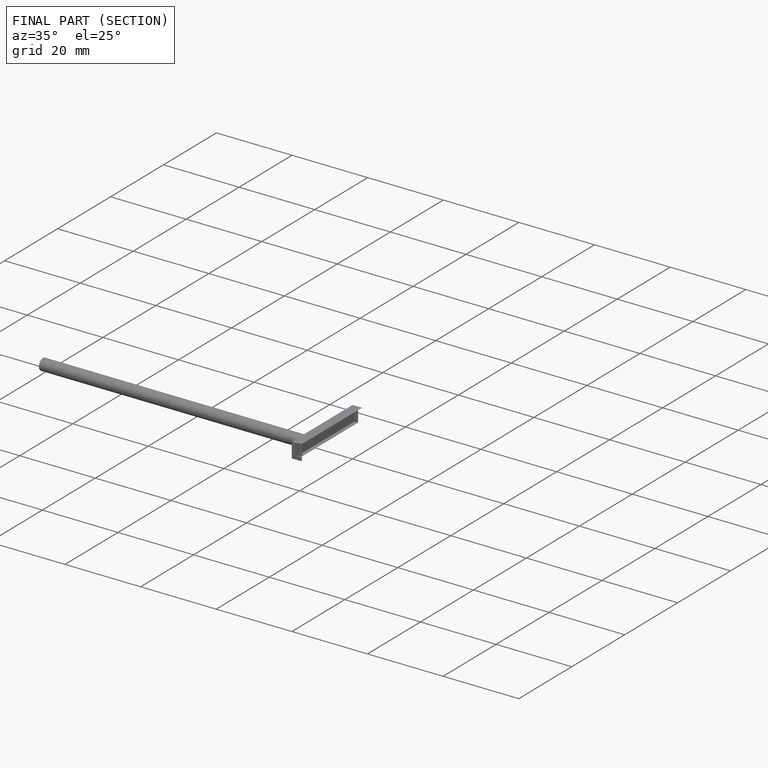
[diagram: finished part — half-section view (interior)]
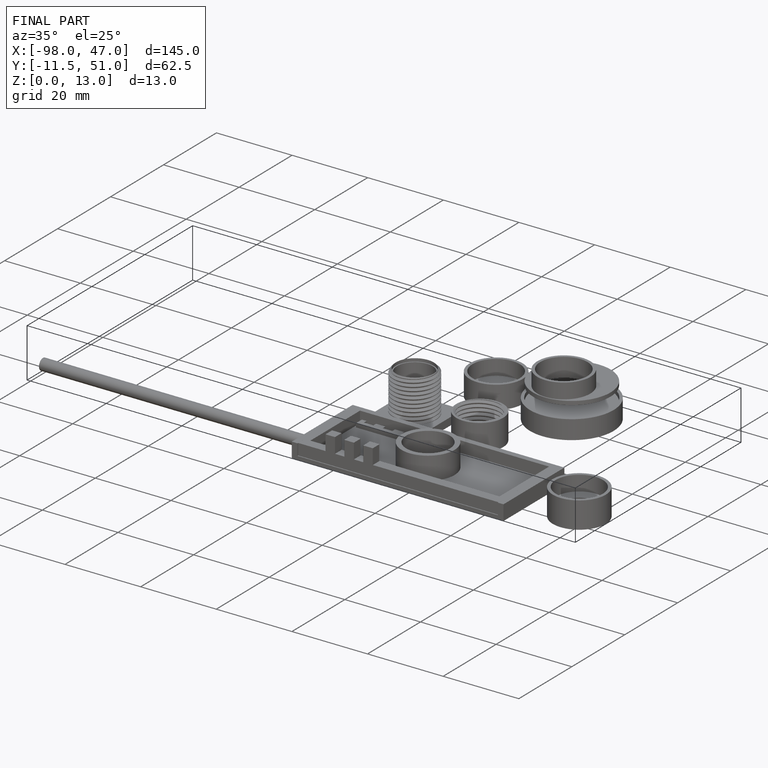
[diagram: finished part — iso view with bounding-box wireframe]
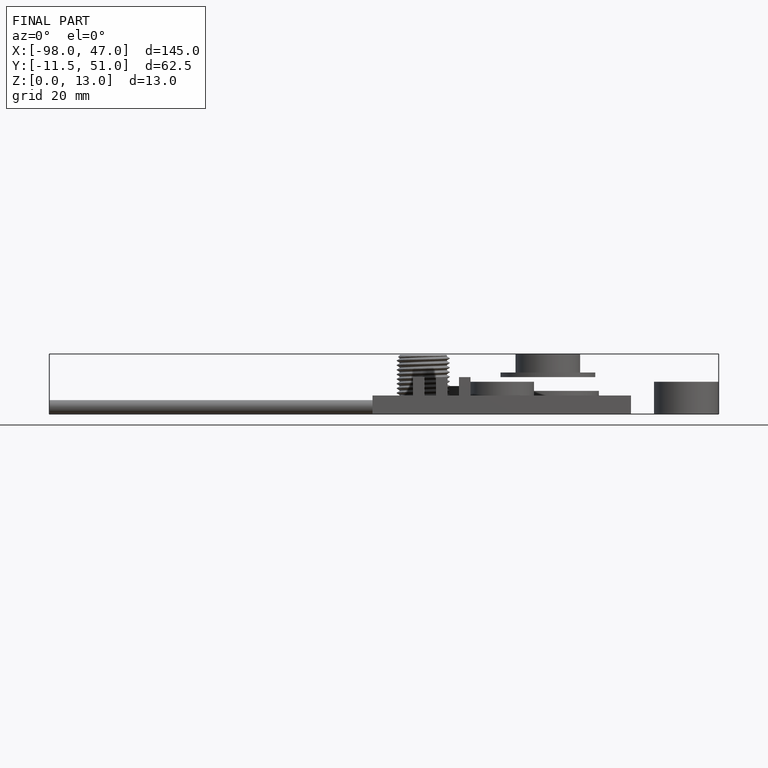
[diagram: finished part — front view with bounding-box wireframe]
